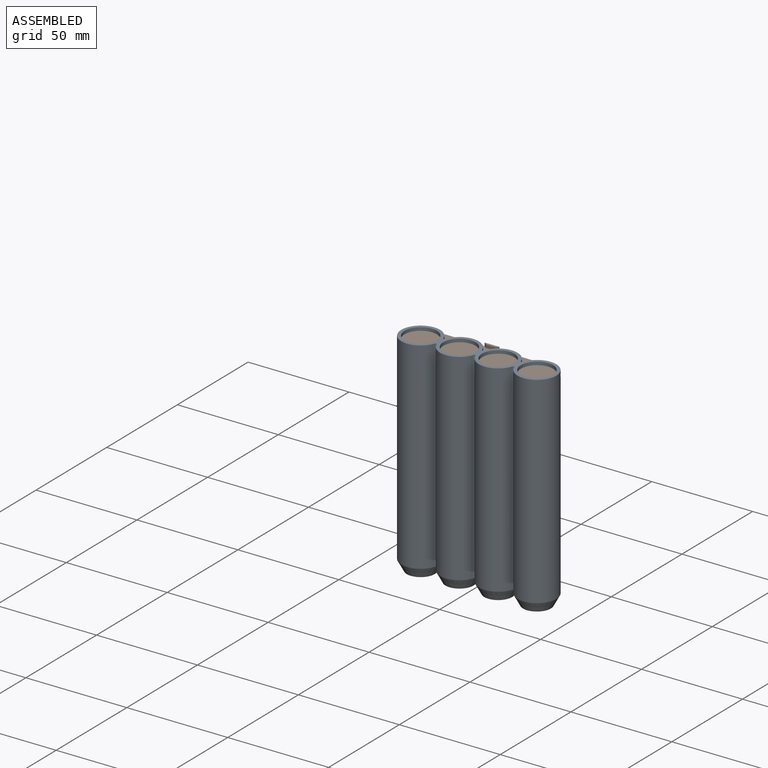
[diagram: assembled view]
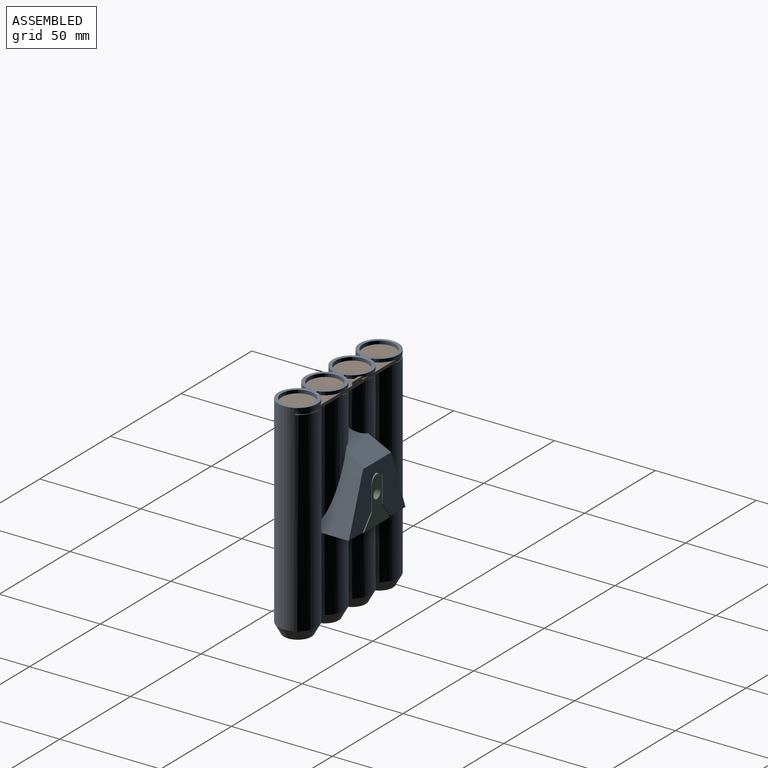
[diagram: assembled view, second angle]
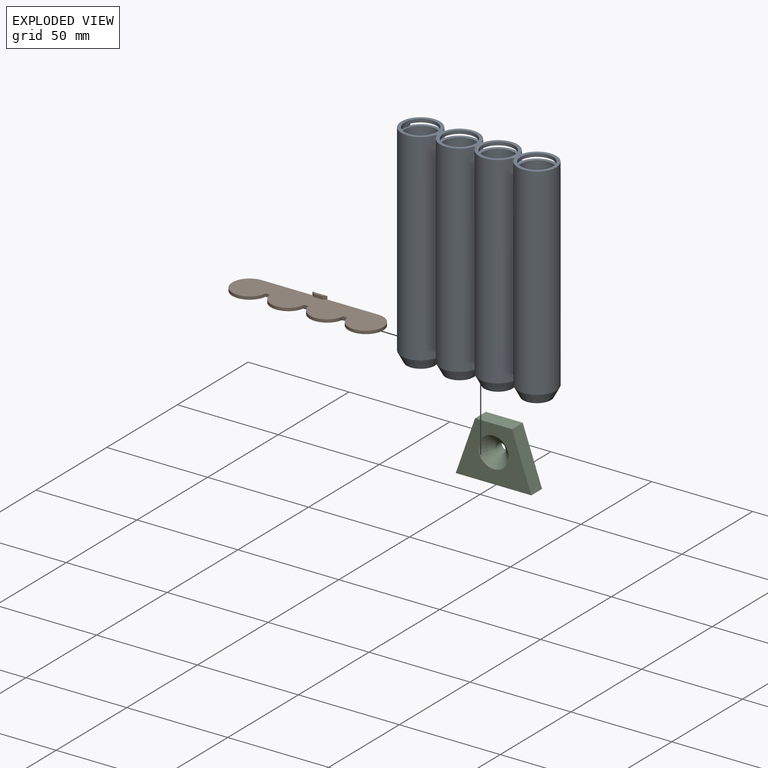
[diagram: exploded view]
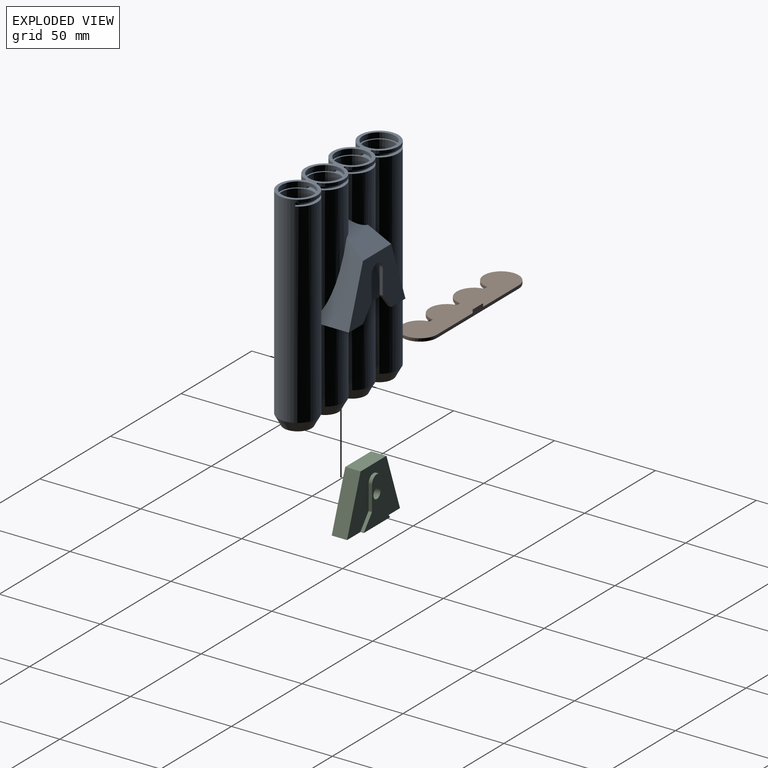
[diagram: exploded view, second angle]
ASSEMBLY  parts=3 mates=2
PART A: 83 faces, bbox 76.8x28.8x105 mm
  f0: cylinder r=8mm len=96.5mm, axis (0,0,-1), area 4850.4mm2, adj f47,f75
  f1: cylinder r=8mm len=96.5mm, axis (0,0,-1), area 4850.4mm2, adj f51,f75
  f2: cylinder r=8mm len=96.5mm, axis (0,0,-1), area 4850.4mm2, adj f55,f75
  f3: cylinder r=8mm len=96.5mm, axis (0,0,-1), area 4850.4mm2, adj f43,f75
  f4: cylinder r=8mm len=16mm, axis (0,0,-1), area 80.4mm2, adj f34,f74
  f5: cylinder r=8mm len=16mm, axis (0,0,-1), area 80.4mm2, adj f34,f74
  f6: cylinder r=8mm len=16mm, axis (0,0,-1), area 80.4mm2, adj f34,f74
  f7: cylinder r=8mm len=16mm, axis (0,0,-1), area 80.4mm2, adj f34,f74
  f8: cylinder r=9.6mm len=18.19mm, axis (0,0,-1), area 38.3mm2, adj f15,f16,f34,f74
  f9: cylinder r=9.6mm len=55.44mm, axis (0,0,-1), area 807.5mm2, adj f22,f23,f61,f64,f75
  f10: cylinder r=9.6mm len=18.19mm, axis (0,0,-1), area 38.3mm2, adj f14,f15,f34,f74
  f11: cylinder r=9.6mm len=55.44mm, axis (0,0,-1), area 807.5mm2, adj f23,f24,f58,f61,f75
  f12: cylinder r=9.6mm len=100mm, axis (0,0,-1), area 5373.9mm2, adj f14,f17,f24,f34,f54,f56,f57,f58
  f13: cylinder r=9.6mm len=100mm, axis (0,0,-1), area 5373.9mm2, adj f16,f21,f22,f34,f42,f64,f65,f66
  f14: cylinder r=0.53mm len=1.6mm, axis (0,0,-1), area 2.1mm2, adj f10,f12,f34,f74
  f15: cylinder r=0.53mm len=1.6mm, axis (0,0,-1), area 2.1mm2, adj f8,f10,f34,f74
  f16: cylinder r=0.53mm len=1.6mm, axis (0,0,-1), area 2.1mm2, adj f8,f13,f34,f74
  f17: plane 16.49x10mm, normal (0,0,-1), area 54.2mm2, adj f12,f18,f24,f25,f26,f31,f32,f56
  f18: plane 26.68x9.43mm, normal (-0.94,0,-0.33), area 226.4mm2, adj f17,f19,f25,f32
  f19: plane 17.74x8mm, normal (0,0,-1), area 141.9mm2, adj f18,f20,f25,f32
  f20: plane 26.68x9.43mm, normal (0.94,0,-0.33), area 226.4mm2, adj f19,f21,f25,f32
  f21: plane 16.49x10mm, normal (0,0,-1), area 54.2mm2, adj f13,f20,f22,f25,f30,f31,f32,f65
  f22: plane 35.21x16.54mm, normal (-0.94,0,0.33), area 396.6mm2, adj f9,f13,f21,f23,f31,f64
  f23: plane 20x16.49mm, normal (0,0.57,0.82), area 253.6mm2, adj f9,f11,f22,f24,f31,f61
  f24: plane 35.21x16.54mm, normal (0.94,0,0.33), area 396.6mm2, adj f11,f12,f17,f23,f31,f58
  f25: plane 36.61x26.68mm, normal (0,-1,0), area 500.8mm2, adj f17,f18,f19,f20,f21,f26,f27,f28
  f26: plane 7.36x6mm, normal (-0.78,0,-0.63), area 15.2mm2, adj f17,f25,f27,f31
  f27: plane 12x1.6mm, normal (-1,0,0), area 19.2mm2, adj f25,f26,f28,f31
  f28: cylinder r=4mm len=8mm, axis (0,-1,0), area 20.1mm2, adj f25,f27,f29,f31
  f29: plane 12x1.6mm, normal (1,0,0), area 19.2mm2, adj f25,f28,f30,f31
  f30: plane 7.36x6mm, normal (0.78,0,-0.63), area 15.2mm2, adj f21,f25,f29,f31
  f31: plane 40x28.28mm, normal (0,1,0), area 624.3mm2, adj f17,f21,f22,f23,f24,f26,f27,f28
  f32: plane 36.61x26.68mm, normal (0,1,0), area 500.8mm2, adj f17,f18,f19,f20,f21,f35,f36,f37
  f33: cylinder r=9.6mm len=100mm, axis (0,0,-1), area 2391.6mm2, adj f34,f46,f62,f66
  f34: plane 76.8x19.2mm, normal (0,0,1), area 358.4mm2, adj f4,f5,f6,f7,f8,f10,f12,f13
  f35: cylinder r=4mm len=8mm, axis (0,1,0), area 42.6mm2, adj f32,f36,f39,f60,f70,f71
  f36: plane 12x1.8mm, normal (1,0,0), area 21.6mm2, adj f32,f35,f37,f71
  f37: plane 6.87x5.6mm, normal (0.78,0,-0.63), area 5.1mm2, adj f32,f36,f71
  f38: cylinder r=9.6mm len=100mm, axis (0,0,-1), area 2391.6mm2, adj f34,f50,f57,f62
  f39: plane 12x1.8mm, normal (-1,0,0), area 21.6mm2, adj f32,f35,f40,f70
  f40: plane 6.87x5.6mm, normal (-0.78,0,-0.63), area 5.1mm2, adj f32,f39,f70
  f41: cone r=6.9mm half-angle=61.6deg, axis (0,0,-1), area 62.3mm2, adj f42,f43
  f42: cone r=9.6mm half-angle=28.4deg, axis (0,0,1), area 294.6mm2, adj f13,f41,f44,f67
  f43: cone r=8.19mm half-angle=28.4deg, axis (0,0,1), area 223.7mm2, adj f3,f41
  f44: plane 3.07x1.01mm, normal (0,0,-1), area 0.8mm2, adj f42,f46,f66
  f45: cone r=6.9mm half-angle=61.6deg, axis (0,0,-1), area 62.3mm2, adj f46,f47
  f46: cone r=9.6mm half-angle=28.4deg, axis (0,0,1), area 294.6mm2, adj f33,f44,f45,f48,f63,f67,f71
  f47: cone r=8.19mm half-angle=28.4deg, axis (0,0,1), area 223.7mm2, adj f0,f45
  f48: plane 3.07x1.01mm, normal (0,0,-1), area 0.8mm2, adj f46,f50,f62
  f49: cone r=6.9mm half-angle=61.6deg, axis (0,0,-1), area 62.3mm2, adj f50,f51
  f50: cone r=9.6mm half-angle=28.4deg, axis (0,0,1), area 294.6mm2, adj f38,f48,f49,f52,f59,f63,f70
  f51: cone r=8.19mm half-angle=28.4deg, axis (0,0,1), area 223.7mm2, adj f1,f49
  f52: plane 3.07x1.01mm, normal (0,0,-1), area 0.8mm2, adj f50,f54,f57
  f53: cone r=6.9mm half-angle=61.6deg, axis (0,0,-1), area 62.3mm2, adj f54,f55
  f54: cone r=9.6mm half-angle=28.4deg, axis (0,0,1), area 294.6mm2, adj f12,f52,f53,f59
  f55: cone r=8.19mm half-angle=28.4deg, axis (0,0,1), area 223.7mm2, adj f2,f53
  f56: cylinder r=0.53mm len=37.78mm, axis (0,0,-1), area 50mm2, adj f12,f17,f59,f70
  f57: cylinder r=0.53mm len=100mm, axis (0,0,-1), area 132.3mm2, adj f12,f34,f38,f52
  f58: cylinder r=0.53mm len=58.28mm, axis (0,0,-1), area 75.2mm2, adj f11,f12,f24,f75
  f59: plane 3.07x1.01mm, normal (0,0,-1), area 0.8mm2, adj f50,f54,f56
  f60: cylinder r=0.53mm len=61.11mm, axis (0,0,-1), area 80.8mm2, adj f35,f63,f70,f71
  f61: cylinder r=0.53mm len=19.54mm, axis (0,0,-1), area 25.6mm2, adj f9,f11,f23,f75
  f62: cylinder r=0.53mm len=100mm, axis (0,0,-1), area 132.3mm2, adj f33,f34,f38,f48
  f63: plane 3.07x1.01mm, normal (0,0,-1), area 0.8mm2, adj f46,f50,f60
  f64: cylinder r=0.53mm len=58.28mm, axis (0,0,-1), area 75.2mm2, adj f9,f13,f22,f75
  f65: cylinder r=0.53mm len=37.78mm, axis (0,0,-1), area 50mm2, adj f13,f21,f67,f71
  f66: cylinder r=0.53mm len=100mm, axis (0,0,-1), area 132.3mm2, adj f13,f33,f34,f44
  f67: plane 3.07x1.01mm, normal (0,0,-1), area 0.8mm2, adj f42,f46,f65
  f68: plane 0.49x0.4mm, normal (0.78,0,-0.63), area 0mm2, adj f21,f32,f71
  f69: plane 0.49x0.4mm, normal (-0.78,0,-0.63), area 0mm2, adj f17,f32,f70
  f70: cylinder r=9.6mm len=61.11mm, axis (0,0,-1), area 1062.6mm2, adj f17,f35,f39,f40,f50,f56,f60,f69
  f71: cylinder r=9.6mm len=61.11mm, axis (0,0,-1), area 1062.6mm2, adj f21,f35,f36,f37,f46,f60,f65,f68
  f72: plane 2.02x1.5mm, normal (-1,0,0), area 3mm2, adj f12,f74,f75,f81
  f73: plane 2.02x1.5mm, normal (1,0,0), area 3mm2, adj f13,f74,f75,f82
  f74: plane 75.2x18.4mm, normal (0,0,-1), area 264.5mm2, adj f4,f5,f6,f7,f8,f10,f12,f13
  f75: plane 75.2x18.4mm, normal (0,0,1), area 264.5mm2, adj f0,f1,f2,f3,f9,f11,f12,f13
  f76: plane 1.82x1.5mm, normal (0,1,0), area 2.7mm2, adj f74,f75,f79,f82
  f77: plane 1.82x1.5mm, normal (0,1,0), area 2.7mm2, adj f74,f75,f80,f81
  f78: plane 1.82x1.5mm, normal (0,1,0), area 2.7mm2, adj f74,f75,f79,f80
  f79: cylinder r=8.8mm len=17.38mm, axis (0,0,1), area 37.3mm2, adj f74,f75,f76,f78
  f80: cylinder r=8.8mm len=17.38mm, axis (0,0,1), area 37.3mm2, adj f74,f75,f77,f78
  f81: cylinder r=8.8mm len=17.49mm, axis (0,0,1), area 43.4mm2, adj f72,f74,f75,f77
  f82: cylinder r=8.8mm len=17.49mm, axis (0,0,1), area 43.4mm2, adj f73,f74,f75,f76
PART B: 14 faces, bbox 74.8x17.2x3.1 mm
  f0: plane 74.8x17.2mm, normal (0,0,1), area 1075.3mm2, adj f1,f2,f3,f4,f5,f6,f7,f8
  f1: cylinder r=8.6mm len=17.2mm, axis (0,0,-1), area 59.3mm2, adj f0,f2,f8,f9
  f2: plane 57.6x3.1mm, normal (0,1,0), area 98.2mm2, adj f0,f1,f3,f9,f10,f11,f13
  f3: cylinder r=8.6mm len=17.2mm, axis (0,0,-1), area 59.3mm2, adj f0,f2,f4,f9
  f4: plane 2.12x1.5mm, normal (0,-1,0), area 3.2mm2, adj f0,f3,f5,f9
  f5: cylinder r=8.6mm len=17.08mm, axis (0,0,-1), area 37.5mm2, adj f0,f4,f6,f9
  f6: plane 2.12x1.5mm, normal (0,-1,0), area 3.2mm2, adj f0,f5,f7,f9
  f7: cylinder r=8.6mm len=17.08mm, axis (0,0,-1), area 37.5mm2, adj f0,f6,f8,f9
  f8: plane 2.12x1.5mm, normal (0,-1,0), area 3.2mm2, adj f0,f1,f7,f9
  f9: plane 74.8x17.2mm, normal (0,0,-1), area 1082.3mm2, adj f1,f2,f3,f4,f5,f6,f7,f8
  f10: plane 1.6x1.53mm, normal (0.62,-0.79,0), area 3.1mm2, adj f0,f2,f12,f13
  f11: plane 1.6x1.53mm, normal (-0.62,-0.79,0), area 3.1mm2, adj f0,f2,f12,f13
  f12: plane 4.32x1.6mm, normal (0,-1,0), area 6.9mm2, adj f0,f10,f11,f13
  f13: plane 7.37x1.2mm, normal (0,0,1), area 7mm2, adj f2,f10,f11,f12
PART C: 14 faces, bbox 37.5x9.3x27.1 mm
  f0: plane 27.08x9.58mm, normal (0.94,0,0.33), area 218.3mm2, adj f1,f3,f4,f5
  f1: plane 18.3x7.6mm, normal (0,0,1), area 139.1mm2, adj f0,f2,f4,f5
  f2: plane 27.08x9.58mm, normal (-0.94,0,0.33), area 218.3mm2, adj f1,f3,f4,f5
  f3: plane 37.45x9.3mm, normal (0,0,-1), area 316.5mm2, adj f0,f2,f4,f5,f6,f7,f11
  f4: plane 37.45x27.08mm, normal (0,1,0), area 578.4mm2, adj f0,f1,f2,f3,f13
  f5: plane 37.45x27.08mm, normal (0,-1,0), area 558.2mm2, adj f0,f1,f2,f3,f6,f7,f8,f9
  f6: plane 7.19x5.86mm, normal (-0.78,0,0.63), area 15.8mm2, adj f3,f5,f10,f11
  f7: plane 7.19x5.86mm, normal (0.78,0,0.63), area 15.8mm2, adj f3,f5,f8,f11
  f8: plane 12.18x1.7mm, normal (1,0,0), area 20.7mm2, adj f5,f7,f9,f11
  f9: cylinder r=3.5mm len=7mm, axis (0,1,0), area 18.7mm2, adj f5,f8,f10,f11
  f10: plane 12.18x1.7mm, normal (-1,0,0), area 20.7mm2, adj f5,f6,f9,f11
  f11: plane 22.86x18.71mm, normal (0,-1,0), area 177.2mm2, adj f3,f6,f7,f8,f9,f10,f12
  f12: cylinder r=2.5mm len=5mm, axis (0,1,0), area 67.5mm2, adj f11,f13
  f13: cone r=2.5mm half-angle=45deg, axis (0,1,0), area 222.1mm2, adj f4,f12
PLACE A t=(-5.51,14.16,-9.06)mm fixed
PLACE B t=(-5.51,14.95,-22.16)mm
PLACE C rot(axis=(0,0,1),180deg) t=(-109.09,31.76,23.82)mm
MATE slider B.f6 <-> A.f78  axis (0,-1,0) through (-5.51,13.96,88.59)mm
MATE slider C.f1 <-> A.f19  axis (0,0,1) through (-14.38,31.76,55.4)mm
